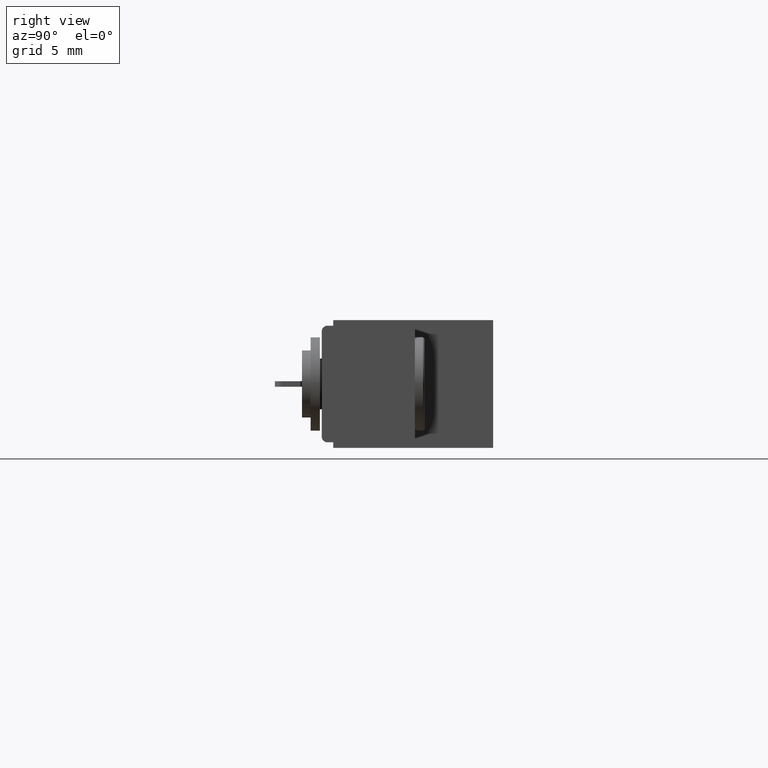
[diagram: clean part render]
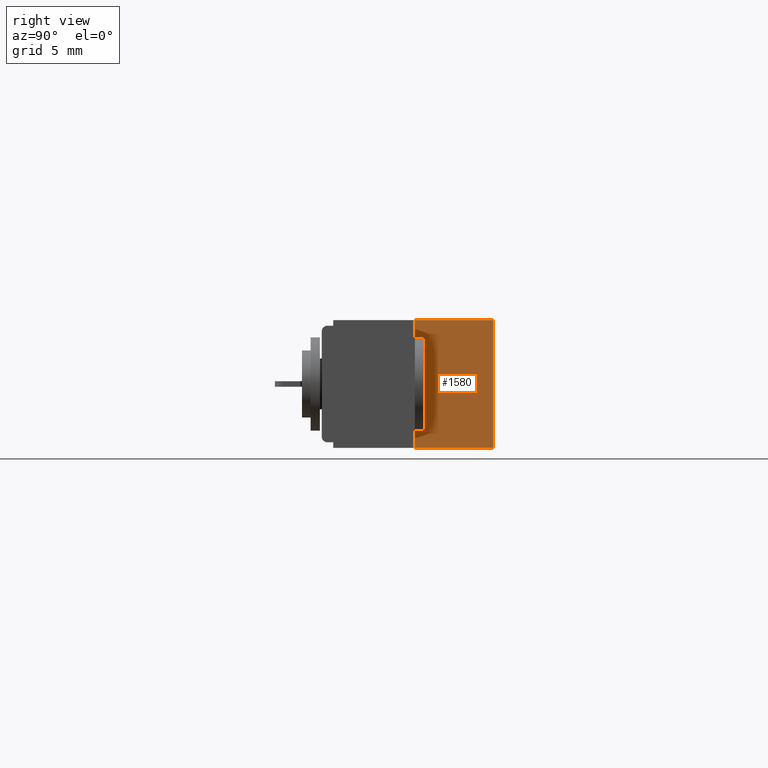
[diagram: same view with one face highlighted and labeled with its STEP entity id]
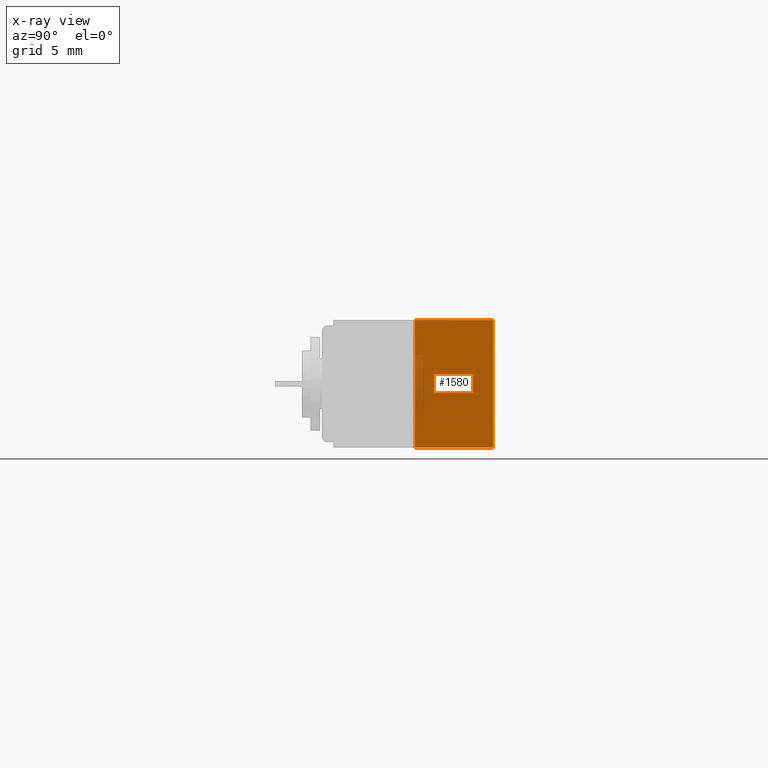
[diagram: x-ray of the same camera — body ghosted, the highlighted face saturated]
A machine part, right view. The second image highlights one B-rep face of the part: STEP entity #1580.
The next image is the same camera in x-ray: the body ghosted, the highlighted face saturated — about 6% of this face is hidden behind the body in this view.
In plain terms, the highlighted planar face has unit normal (-1, 0, 0).
Its self-contained STEP definition (entity closure, byte-faithful):
#72 = VECTOR ( 'NONE', #1059, 39.37007874015748100 ) ;
#273 = LINE ( 'NONE', #3033, #72 ) ;
#464 = CARTESIAN_POINT ( 'NONE',  ( 1.544000000000000700, 0.4600000000000000200, 0.0000000000000000000 ) ) ;
#1059 = DIRECTION ( 'NONE',  ( -0.0000000000000000000, 1.000000000000000000, -0.0000000000000000000 ) ) ;
#1580 = ADVANCED_FACE ( 'NONE', ( #6533 ), #9582, .F. ) ;
#1602 = EDGE_CURVE ( 'NONE', #2438, #3413, #6187, .T. ) ;
#1716 = ORIENTED_EDGE ( 'NONE', *, *, #3013, .T. ) ;
#1718 = ORIENTED_EDGE ( 'NONE', *, *, #2000, .T. ) ;
#2000 = EDGE_CURVE ( 'NONE', #9251, #3413, #4332, .T. ) ;
#2438 = VERTEX_POINT ( 'NONE', #6229 ) ;
#2495 = VERTEX_POINT ( 'NONE', #4818 ) ;
#2976 = DIRECTION ( 'NONE',  ( -0.0000000000000000000, 1.000000000000000000, -0.0000000000000000000 ) ) ;
#3013 = EDGE_CURVE ( 'NONE', #2495, #9251, #273, .T. ) ;
#3033 = CARTESIAN_POINT ( 'NONE',  ( 1.544000000000000700, 0.2500000000000000600, -0.3430000000000000300 ) ) ;
#3413 = VERTEX_POINT ( 'NONE', #4486 ) ;
#3530 = CARTESIAN_POINT ( 'NONE',  ( 1.544000000000000700, 0.2500000000000000600, 0.0000000000000000000 ) ) ;
#4031 = ORIENTED_EDGE ( 'NONE', *, *, #4254, .F. ) ;
#4150 = CARTESIAN_POINT ( 'NONE',  ( 1.544000000000000700, 0.2500000000000000600, 0.0000000000000000000 ) ) ;
#4254 = EDGE_CURVE ( 'NONE', #2495, #2438, #11169, .T. ) ;
#4312 = VECTOR ( 'NONE', #9082, 39.37007874015748100 ) ;
#4332 = LINE ( 'NONE', #464, #4312 ) ;
#4486 = CARTESIAN_POINT ( 'NONE',  ( 1.544000000000000700, 0.4600000000000000200, 0.0000000000000000000 ) ) ;
#4818 = CARTESIAN_POINT ( 'NONE',  ( 1.544000000000000700, 0.2500000000000000600, -0.3430000000000000300 ) ) ;
#5102 = VECTOR ( 'NONE', #8987, 39.37007874015748100 ) ;
#6187 = LINE ( 'NONE', #4150, #6434 ) ;
#6229 = CARTESIAN_POINT ( 'NONE',  ( 1.544000000000000700, 0.2500000000000000600, 0.0000000000000000000 ) ) ;
#6434 = VECTOR ( 'NONE', #2976, 39.37007874015748100 ) ;
#6533 = FACE_OUTER_BOUND ( 'NONE', #7669, .T. ) ;
#7051 = ORIENTED_EDGE ( 'NONE', *, *, #1602, .F. ) ;
#7224 = DIRECTION ( 'NONE',  ( -0.0000000000000000000, 0.0000000000000000000, 1.000000000000000000 ) ) ;
#7236 = DIRECTION ( 'NONE',  ( -1.000000000000000000, 0.0000000000000000000, -0.0000000000000000000 ) ) ;
#7669 = EDGE_LOOP ( 'NONE', ( #1718, #7051, #4031, #1716 ) ) ;
#8972 = CARTESIAN_POINT ( 'NONE',  ( 1.544000000000000700, 0.2500000000000000600, 0.0000000000000000000 ) ) ;
#8987 = DIRECTION ( 'NONE',  ( -0.0000000000000000000, -0.0000000000000000000, 1.000000000000000000 ) ) ;
#9082 = DIRECTION ( 'NONE',  ( -0.0000000000000000000, -0.0000000000000000000, 1.000000000000000000 ) ) ;
#9251 = VERTEX_POINT ( 'NONE', #10683 ) ;
#9582 = PLANE ( 'NONE',  #9662 ) ;
#9662 = AXIS2_PLACEMENT_3D ( 'NONE', #3530, #7236, #7224 ) ;
#10683 = CARTESIAN_POINT ( 'NONE',  ( 1.544000000000000700, 0.4600000000000000200, -0.3430000000000000300 ) ) ;
#11169 = LINE ( 'NONE', #8972, #5102 ) ;